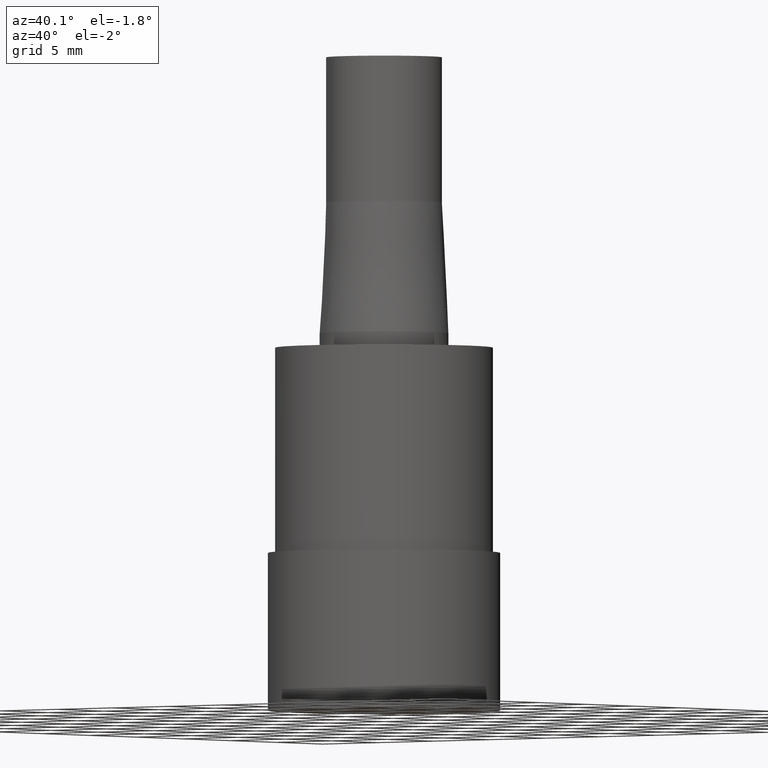
[diagram: clean part render]
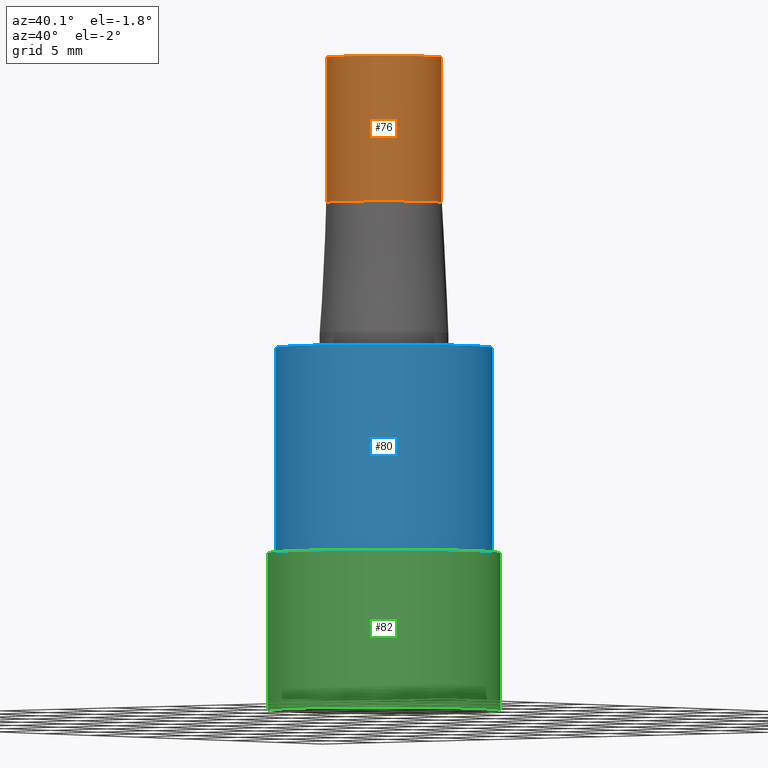
[diagram: same view with three faces highlighted in distinct colors, each labeled with its STEP entity id]
A machine part, auxiliary view with three faces highlighted in distinct colors.
Their STEP definitions:

[orange] entity #76 — the highlighted cylindrical surface (bore or boss wall) has radius 4 mm, axis along (-0, -0, 1).
#76=ADVANCED_FACE('',(#87,#88),#89,.T.);
#87=FACE_BOUND('',#112,.T.);
#88=FACE_BOUND('',#113,.T.);
#89=CYLINDRICAL_SURFACE('',#114,4.0);
#112=EDGE_LOOP('',(#139));
#113=EDGE_LOOP('',(#140));
#114=AXIS2_PLACEMENT_3D('',#141,#142,#143);
#139=ORIENTED_EDGE('',*,*,#179,.F.);
#140=ORIENTED_EDGE('',*,*,#178,.T.);
#141=CARTESIAN_POINT('',(-2.44929359829471E-015,-4.89858719658942E-015,40.0000000000001));
#142=DIRECTION('',(-6.12323399573677E-017,-1.22464679914735E-016,1.0));
#143=DIRECTION('',(-1.23259516440783E-032,1.0,1.22464679914735E-016));
#178=EDGE_CURVE('',#186,#186,#187,.T.);
#179=EDGE_CURVE('',#188,#188,#189,.T.);
#186=VERTEX_POINT('',#202);
#187=CIRCLE('',#203,4.0);
#188=VERTEX_POINT('',#204);
#189=CIRCLE('',#205,4.0);
#202=CARTESIAN_POINT('',(-2.75545529808155E-015,3.99999999999999,45.0000000000001));
#203=AXIS2_PLACEMENT_3D('',#218,#219,#220);
#204=CARTESIAN_POINT('',(-2.14313189850787E-015,4.0,35.0000000000001));
#205=AXIS2_PLACEMENT_3D('',#221,#222,#223);
#218=CARTESIAN_POINT('',(-2.75545529808155E-015,-5.5109105961631E-015,45.0000000000001));
#219=DIRECTION('',(6.12323399573677E-017,1.22464679914735E-016,-1.0));
#220=DIRECTION('',(-1.23259516440783E-032,1.0,1.22464679914735E-016));
#221=CARTESIAN_POINT('',(-2.14313189850787E-015,-4.28626379701575E-015,35.0000000000001));
#222=DIRECTION('',(6.12323399573677E-017,1.22464679914735E-016,-1.0));
#223=DIRECTION('',(-1.23259516440783E-032,1.0,1.22464679914735E-016));

[blue] entity #80 — the highlighted cylindrical surface (bore or boss wall) has radius 7.5 mm, axis along (-0, -0, 1).
#80=ADVANCED_FACE('',(#99,#100),#101,.T.);
#99=FACE_BOUND('',#124,.T.);
#100=FACE_BOUND('',#125,.T.);
#101=CYLINDRICAL_SURFACE('',#126,7.5);
#124=EDGE_LOOP('',(#159));
#125=EDGE_LOOP('',(#160));
#126=AXIS2_PLACEMENT_3D('',#161,#162,#163);
#159=ORIENTED_EDGE('',*,*,#183,.F.);
#160=ORIENTED_EDGE('',*,*,#182,.T.);
#161=CARTESIAN_POINT('',(-1.09798608973237E-015,-2.19597217946475E-015,17.9314736378984));
#162=DIRECTION('',(-6.12323399573677E-017,-1.22464679914735E-016,1.0));
#163=DIRECTION('',(-1.23259516440783E-032,1.0,1.22464679914735E-016));
#182=EDGE_CURVE('',#194,#194,#195,.T.);
#183=EDGE_CURVE('',#196,#196,#197,.T.);
#194=VERTEX_POINT('',#210);
#195=CIRCLE('',#211,7.5);
#196=VERTEX_POINT('',#212);
#197=CIRCLE('',#213,7.5);
#210=CARTESIAN_POINT('',(-1.5308084989342E-015,7.5,25.0000000000001));
#211=AXIS2_PLACEMENT_3D('',#230,#231,#232);
#212=CARTESIAN_POINT('',(-6.65163680530549E-016,7.5,10.8629472757968));
#213=AXIS2_PLACEMENT_3D('',#233,#234,#235);
#230=CARTESIAN_POINT('',(-1.5308084989342E-015,-3.06161699786839E-015,25.0000000000001));
#231=DIRECTION('',(6.12323399573677E-017,1.22464679914735E-016,-1.0));
#232=DIRECTION('',(-1.23259516440783E-032,1.0,1.22464679914735E-016));
#233=CARTESIAN_POINT('',(-6.65163680530549E-016,-1.3303273610611E-015,10.8629472757968));
#234=DIRECTION('',(6.12323399573677E-017,1.22464679914735E-016,-1.0));
#235=DIRECTION('',(-1.23259516440783E-032,1.0,1.22464679914735E-016));

[green] entity #82 — the highlighted cylindrical surface (bore or boss wall) has radius 8 mm, axis along (-0, -0, 1).
#82=ADVANCED_FACE('',(#105,#106),#107,.T.);
#105=FACE_BOUND('',#130,.T.);
#106=FACE_BOUND('',#131,.T.);
#107=CYLINDRICAL_SURFACE('',#132,8.00000000000001);
#130=EDGE_LOOP('',(#169));
#131=EDGE_LOOP('',(#170));
#132=AXIS2_PLACEMENT_3D('',#171,#172,#173);
#169=ORIENTED_EDGE('',*,*,#185,.F.);
#170=ORIENTED_EDGE('',*,*,#184,.T.);
#171=CARTESIAN_POINT('',(-3.32581840265274E-016,-6.65163680530548E-016,5.43147363789839));
#172=DIRECTION('',(-6.12323399573676E-017,-1.22464679914735E-016,1.0));
#173=DIRECTION('',(-1.23259516440783E-032,1.0,1.22464679914735E-016));
#184=EDGE_CURVE('',#198,#198,#199,.T.);
#185=EDGE_CURVE('',#200,#200,#201,.T.);
#198=VERTEX_POINT('',#214);
#199=CIRCLE('',#215,8.00000000000001);
#200=VERTEX_POINT('',#216);
#201=CIRCLE('',#217,8.0);
#214=CARTESIAN_POINT('',(-6.65163680530549E-016,8.00000000000001,10.8629472757968));
#215=AXIS2_PLACEMENT_3D('',#236,#237,#238);
#216=CARTESIAN_POINT('',(0.0,8.0,0.0));
#217=AXIS2_PLACEMENT_3D('',#239,#240,#241);
#236=CARTESIAN_POINT('',(-6.65163680530549E-016,-1.3303273610611E-015,10.8629472757968));
#237=DIRECTION('',(6.12323399573677E-017,1.22464679914735E-016,-1.0));
#238=DIRECTION('',(-1.23259516440783E-032,1.0,1.22464679914735E-016));
#239=CARTESIAN_POINT('',(0.0,0.0,0.0));
#240=DIRECTION('',(6.12323399573677E-017,1.22464679914735E-016,-1.0));
#241=DIRECTION('',(-1.23259516440783E-032,1.0,1.22464679914735E-016));